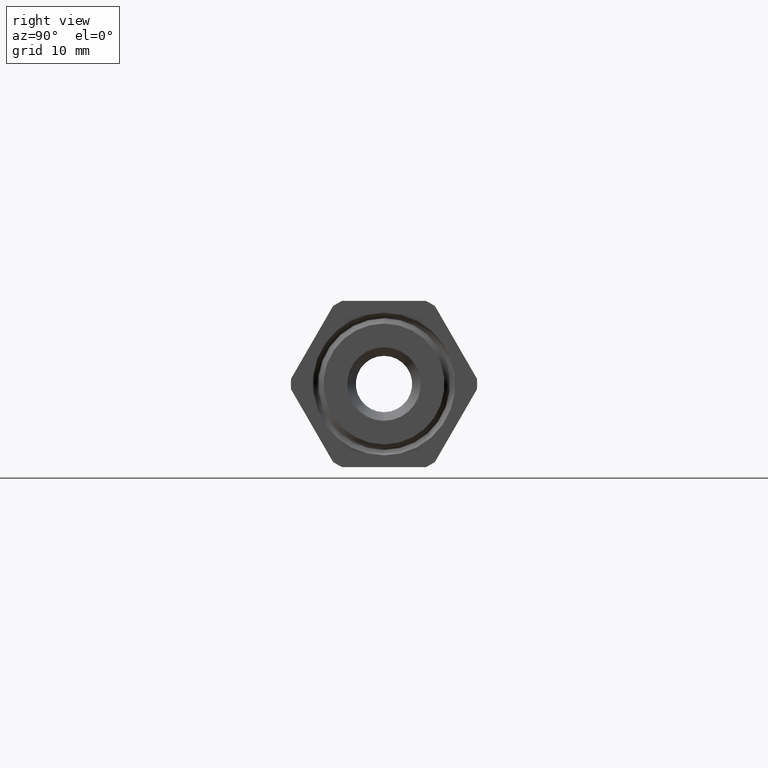
[diagram: clean part render]
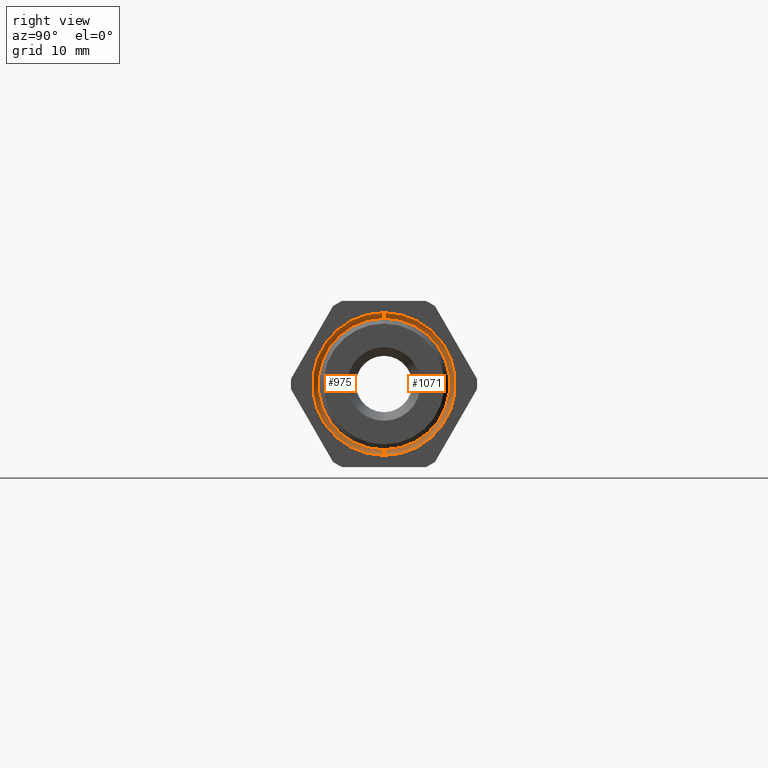
[diagram: same view with one multi-face feature highlighted, each face labeled with its STEP entity id]
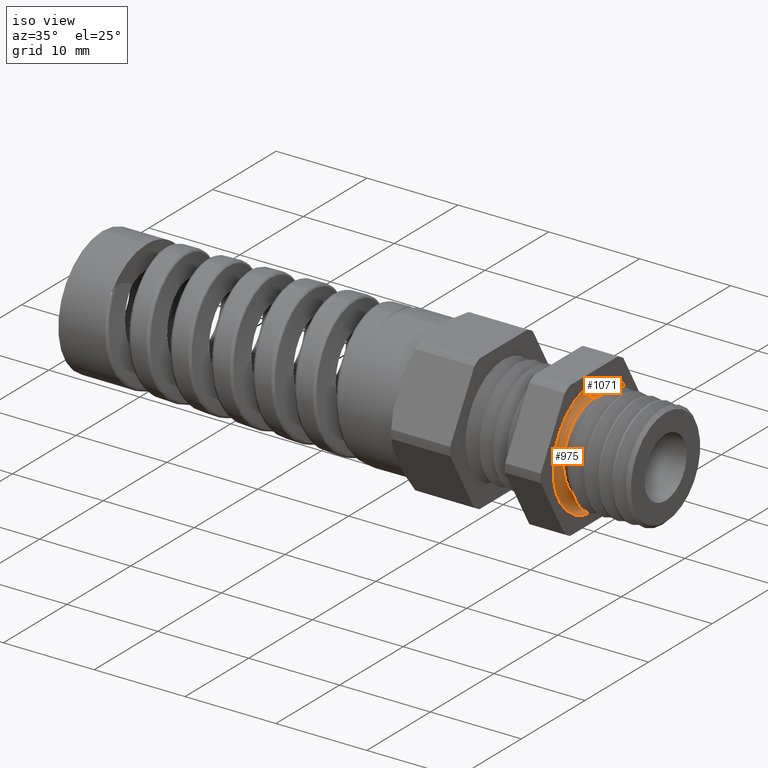
[diagram: same view with one multi-face feature highlighted, each face labeled with its STEP entity id]
A machine part, right view. The highlighted faces form ONE feature: a constant-radius fillet chain: 2 tangent blend faces with common blend radius 0.8255 mm. The faces share edges in the B-rep.
A second angle (iso view) of the same feature is appended — it is thin or edge-on in the first view.
Their STEP definitions:
[1] entity #975 (Torus):
#965 = EDGE_CURVE ( 'NONE', #1073, #966, #7711, .T. ) ;
#966 = VERTEX_POINT ( 'NONE', #7706 ) ;
#969 = VERTEX_POINT ( 'NONE', #7700 ) ;
#971 = EDGE_CURVE ( 'NONE', #972, #969, #7699, .T. ) ;
#972 = VERTEX_POINT ( 'NONE', #7694 ) ;
#975 = ADVANCED_FACE ( 'NONE', ( #7757 ), #7756, .F. ) ;
#976 = EDGE_LOOP ( 'NONE', ( #977, #1007, #1009, #1010 ) ) ;
#977 = ORIENTED_EDGE ( 'NONE', *, *, #971, .T. ) ;
#1007 = ORIENTED_EDGE ( 'NONE', *, *, #1008, .T. ) ;
#1008 = EDGE_CURVE ( 'NONE', #969, #966, #7887, .T. ) ;
#1009 = ORIENTED_EDGE ( 'NONE', *, *, #965, .F. ) ;
#1010 = ORIENTED_EDGE ( 'NONE', *, *, #1011, .F. ) ;
#1011 = EDGE_CURVE ( 'NONE', #972, #1073, #7882, .T. ) ;
#1073 = VERTEX_POINT ( 'NONE', #8158 ) ;
#7694 = CARTESIAN_POINT ( 'NONE',  ( 3.487598135429819200E-017, 3.102695080522822500E-017, -0.2533542799999999300 ) ) ;
#7695 = DIRECTION ( 'NONE',  ( 0.0000000000000000000, -1.224646799147353700E-016, 1.000000000000000000 ) ) ;
#7696 = DIRECTION ( 'NONE',  ( 0.0000000000000000000, 1.000000000000000000, 1.224646799147353200E-016 ) ) ;
#7697 = CARTESIAN_POINT ( 'NONE',  ( 0.0000000000000000000, 2.704684870799933300E-017, -0.2208542800000000100 ) ) ;
#7698 = AXIS2_PLACEMENT_3D ( 'NONE', #7697, #7696, #7695 ) ;
#7699 = CIRCLE ( 'NONE', #7698, 0.03249999999999995900 ) ;
#7700 = CARTESIAN_POINT ( 'NONE',  ( 3.980102097228896800E-018, 2.306674661077043400E-017, -0.1883542800000000700 ) ) ;
#7706 = CARTESIAN_POINT ( 'NONE',  ( 3.980102097228896800E-018, 0.0000000000000000000, 0.1883542800000000700 ) ) ;
#7707 = DIRECTION ( 'NONE',  ( 0.0000000000000000000, 0.0000000000000000000, -1.000000000000000000 ) ) ;
#7708 = DIRECTION ( 'NONE',  ( 0.0000000000000000000, -1.000000000000000000, 0.0000000000000000000 ) ) ;
#7709 = CARTESIAN_POINT ( 'NONE',  ( 0.0000000000000000000, 0.0000000000000000000, 0.2208542800000000100 ) ) ;
#7710 = AXIS2_PLACEMENT_3D ( 'NONE', #7709, #7708, #7707 ) ;
#7711 = CIRCLE ( 'NONE', #7710, 0.03249999999999995900 ) ;
#7751 = DIRECTION ( 'NONE',  ( 0.0000000000000000000, 0.0000000000000000000, 1.000000000000000000 ) ) ;
#7752 = DIRECTION ( 'NONE',  ( -1.000000000000000000, 0.0000000000000000000, 0.0000000000000000000 ) ) ;
#7753 = CARTESIAN_POINT ( 'NONE',  ( 0.0000000000000000000, 0.0000000000000000000, 0.0000000000000000000 ) ) ;
#7754 = AXIS2_PLACEMENT_3D ( 'NONE', #7753, #7752, #7751 ) ;
#7756 = TOROIDAL_SURFACE ( 'NONE', #7754, 0.2208542800000000100, 0.03249999999999997300 ) ;
#7757 = FACE_OUTER_BOUND ( 'NONE', #976, .T. ) ;
#7854 = CARTESIAN_POINT ( 'NONE',  ( 3.980102097228894500E-018, 0.0000000000000000000, 0.0000000000000000000 ) ) ;
#7878 = DIRECTION ( 'NONE',  ( 0.0000000000000000000, 0.0000000000000000000, 1.000000000000000000 ) ) ;
#7879 = DIRECTION ( 'NONE',  ( -1.000000000000000000, 0.0000000000000000000, 0.0000000000000000000 ) ) ;
#7880 = CARTESIAN_POINT ( 'NONE',  ( 3.487598135429819200E-017, 0.0000000000000000000, 0.0000000000000000000 ) ) ;
#7881 = AXIS2_PLACEMENT_3D ( 'NONE', #7880, #7879, #7878 ) ;
#7882 = CIRCLE ( 'NONE', #7881, 0.2533542799999999900 ) ;
#7884 = DIRECTION ( 'NONE',  ( 0.0000000000000000000, 0.0000000000000000000, 1.000000000000000000 ) ) ;
#7885 = DIRECTION ( 'NONE',  ( -1.000000000000000000, 0.0000000000000000000, 0.0000000000000000000 ) ) ;
#7886 = AXIS2_PLACEMENT_3D ( 'NONE', #7854, #7885, #7884 ) ;
#7887 = CIRCLE ( 'NONE', #7886, 0.1883542800000000700 ) ;
#8158 = CARTESIAN_POINT ( 'NONE',  ( 3.487598135429819200E-017, 0.0000000000000000000, 0.2533542799999999300 ) ) ;
[2] entity #1071 (Torus):
#964 = ORIENTED_EDGE ( 'NONE', *, *, #965, .T. ) ;
#965 = EDGE_CURVE ( 'NONE', #1073, #966, #7711, .T. ) ;
#966 = VERTEX_POINT ( 'NONE', #7706 ) ;
#967 = ORIENTED_EDGE ( 'NONE', *, *, #968, .T. ) ;
#968 = EDGE_CURVE ( 'NONE', #966, #969, #7705, .T. ) ;
#969 = VERTEX_POINT ( 'NONE', #7700 ) ;
#970 = ORIENTED_EDGE ( 'NONE', *, *, #971, .F. ) ;
#971 = EDGE_CURVE ( 'NONE', #972, #969, #7699, .T. ) ;
#972 = VERTEX_POINT ( 'NONE', #7694 ) ;
#973 = ORIENTED_EDGE ( 'NONE', *, *, #974, .F. ) ;
#974 = EDGE_CURVE ( 'NONE', #1073, #972, #7693, .T. ) ;
#1071 = ADVANCED_FACE ( 'NONE', ( #8164 ), #8163, .F. ) ;
#1072 = EDGE_LOOP ( 'NONE', ( #964, #967, #970, #973 ) ) ;
#1073 = VERTEX_POINT ( 'NONE', #8158 ) ;
#7691 = CARTESIAN_POINT ( 'NONE',  ( 3.487598135429819200E-017, 0.0000000000000000000, 0.0000000000000000000 ) ) ;
#7692 = AXIS2_PLACEMENT_3D ( 'NONE', #7691, #7759, #7758 ) ;
#7693 = CIRCLE ( 'NONE', #7692, 0.2533542799999999900 ) ;
#7694 = CARTESIAN_POINT ( 'NONE',  ( 3.487598135429819200E-017, 3.102695080522822500E-017, -0.2533542799999999300 ) ) ;
#7695 = DIRECTION ( 'NONE',  ( 0.0000000000000000000, -1.224646799147353700E-016, 1.000000000000000000 ) ) ;
#7696 = DIRECTION ( 'NONE',  ( 0.0000000000000000000, 1.000000000000000000, 1.224646799147353200E-016 ) ) ;
#7697 = CARTESIAN_POINT ( 'NONE',  ( 0.0000000000000000000, 2.704684870799933300E-017, -0.2208542800000000100 ) ) ;
#7698 = AXIS2_PLACEMENT_3D ( 'NONE', #7697, #7696, #7695 ) ;
#7699 = CIRCLE ( 'NONE', #7698, 0.03249999999999995900 ) ;
#7700 = CARTESIAN_POINT ( 'NONE',  ( 3.980102097228896800E-018, 2.306674661077043400E-017, -0.1883542800000000700 ) ) ;
#7701 = DIRECTION ( 'NONE',  ( 0.0000000000000000000, 0.0000000000000000000, 1.000000000000000000 ) ) ;
#7702 = DIRECTION ( 'NONE',  ( -1.000000000000000000, 0.0000000000000000000, 0.0000000000000000000 ) ) ;
#7703 = CARTESIAN_POINT ( 'NONE',  ( 3.980102097228894500E-018, 0.0000000000000000000, 0.0000000000000000000 ) ) ;
#7704 = AXIS2_PLACEMENT_3D ( 'NONE', #7703, #7702, #7701 ) ;
#7705 = CIRCLE ( 'NONE', #7704, 0.1883542800000000700 ) ;
#7706 = CARTESIAN_POINT ( 'NONE',  ( 3.980102097228896800E-018, 0.0000000000000000000, 0.1883542800000000700 ) ) ;
#7707 = DIRECTION ( 'NONE',  ( 0.0000000000000000000, 0.0000000000000000000, -1.000000000000000000 ) ) ;
#7708 = DIRECTION ( 'NONE',  ( 0.0000000000000000000, -1.000000000000000000, 0.0000000000000000000 ) ) ;
#7709 = CARTESIAN_POINT ( 'NONE',  ( 0.0000000000000000000, 0.0000000000000000000, 0.2208542800000000100 ) ) ;
#7710 = AXIS2_PLACEMENT_3D ( 'NONE', #7709, #7708, #7707 ) ;
#7711 = CIRCLE ( 'NONE', #7710, 0.03249999999999995900 ) ;
#7758 = DIRECTION ( 'NONE',  ( 0.0000000000000000000, 0.0000000000000000000, 1.000000000000000000 ) ) ;
#7759 = DIRECTION ( 'NONE',  ( -1.000000000000000000, 0.0000000000000000000, 0.0000000000000000000 ) ) ;
#8158 = CARTESIAN_POINT ( 'NONE',  ( 3.487598135429819200E-017, 0.0000000000000000000, 0.2533542799999999300 ) ) ;
#8159 = DIRECTION ( 'NONE',  ( 0.0000000000000000000, 0.0000000000000000000, 1.000000000000000000 ) ) ;
#8160 = DIRECTION ( 'NONE',  ( -1.000000000000000000, 0.0000000000000000000, 0.0000000000000000000 ) ) ;
#8161 = CARTESIAN_POINT ( 'NONE',  ( 0.0000000000000000000, 0.0000000000000000000, 0.0000000000000000000 ) ) ;
#8162 = AXIS2_PLACEMENT_3D ( 'NONE', #8161, #8160, #8159 ) ;
#8163 = TOROIDAL_SURFACE ( 'NONE', #8162, 0.2208542800000000100, 0.03249999999999997300 ) ;
#8164 = FACE_OUTER_BOUND ( 'NONE', #1072, .T. ) ;